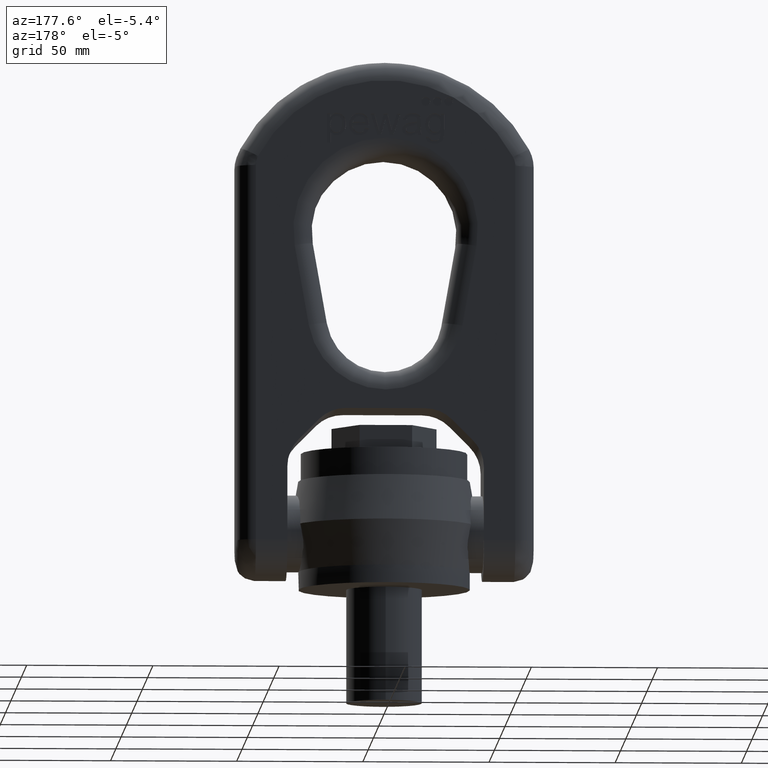
[diagram: clean part render]
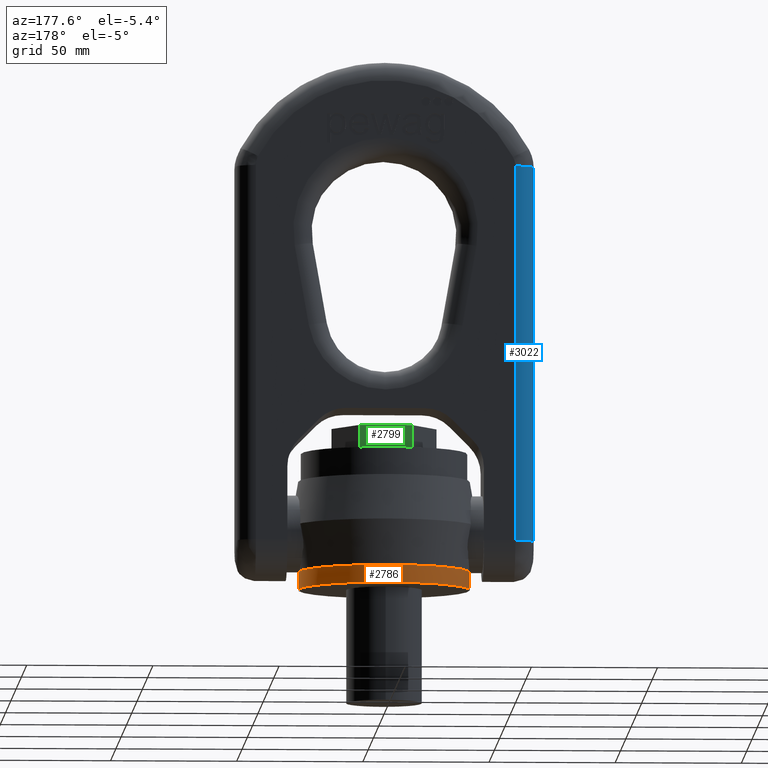
[diagram: same view with three faces highlighted in distinct colors, each labeled with its STEP entity id]
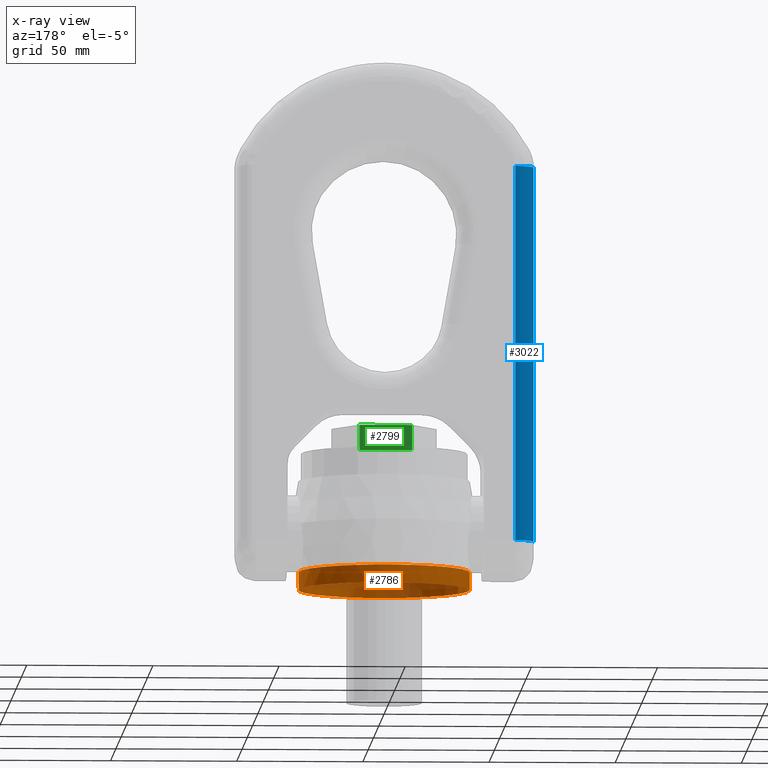
[diagram: x-ray of the same camera — body ghosted, the three highlighted faces saturated]
A machine part, auxiliary view with three faces highlighted in distinct colors.
The next image is the same camera in x-ray (body ghosted, the three faces saturated) — at least one of them is partly hidden behind the body in this view.
Their STEP definitions:

[orange] entity #2786 — the highlighted cylindrical surface (bore or boss wall) has radius 34 mm, axis along (0, 0, -1).
#2786=ADVANCED_FACE('',(#3069,#3070),#3040,.T.);
#3040=CYLINDRICAL_SURFACE('',#5830,34.);
#3069=FACE_BOUND('',#3137,.T.);
#3070=FACE_BOUND('',#3138,.T.);
#3137=EDGE_LOOP('',(#3433));
#3138=EDGE_LOOP('',(#3434));
#3433=ORIENTED_EDGE('',*,*,#5117,.T.);
#3434=ORIENTED_EDGE('',*,*,#5118,.F.);
#4697=VERTEX_POINT('',#6938);
#4698=VERTEX_POINT('',#6940);
#5117=EDGE_CURVE('',#4697,#4697,#5749,.T.);
#5118=EDGE_CURVE('',#4698,#4698,#5750,.T.);
#5749=CIRCLE('',#5828,34.);
#5750=CIRCLE('',#5829,34.);
#5828=AXIS2_PLACEMENT_3D('',#6937,#6066,#6067);
#5829=AXIS2_PLACEMENT_3D('',#6939,#6068,#6069);
#5830=AXIS2_PLACEMENT_3D('',#6941,#6070,#6071);
#6066=DIRECTION('',(0.,0.,-1.));
#6067=DIRECTION('',(-1.,0.,0.));
#6068=DIRECTION('',(0.,0.,-1.));
#6069=DIRECTION('',(-6.12323399573677E-17,1.,0.));
#6070=DIRECTION('',(0.,0.,-1.));
#6071=DIRECTION('',(-1.,0.,0.));
#6937=CARTESIAN_POINT('',(0.,0.,7.));
#6938=CARTESIAN_POINT('',(-34.,0.,7.));
#6939=CARTESIAN_POINT('',(0.,0.,0.));
#6940=CARTESIAN_POINT('',(-2.0818995585505E-15,34.,0.));
#6941=CARTESIAN_POINT('',(0.,0.,7.));

[blue] entity #3022 — the highlighted cylindrical surface (edge-blend (fillet) strip) has radius 7.6 mm, axis along (-0, 0, -1).
#1823=LINE('',#7423,#2131);
#1865=LINE('',#7745,#2173);
#2131=VECTOR('',#6282,1.);
#2173=VECTOR('',#6346,1.);
#2647=FACE_OUTER_BOUND('',#3415,.T.);
#3022=ADVANCED_FACE('',(#2647),#3062,.T.);
#3062=CYLINDRICAL_SURFACE('',#6035,7.6);
#3415=EDGE_LOOP('',(#4625,#4626,#4627,#4628));
#4625=ORIENTED_EDGE('',*,*,#5729,.T.);
#4626=ORIENTED_EDGE('',*,*,#5361,.F.);
#4627=ORIENTED_EDGE('',*,*,#5732,.F.);
#4628=ORIENTED_EDGE('',*,*,#5278,.F.);
#4739=VERTEX_POINT('',#7058);
#4840=VERTEX_POINT('',#7424);
#4920=VERTEX_POINT('',#7744);
#4921=VERTEX_POINT('',#7746);
#5278=EDGE_CURVE('',#4739,#4840,#1823,.T.);
#5361=EDGE_CURVE('',#4920,#4921,#1865,.T.);
#5729=EDGE_CURVE('',#4739,#4921,#5807,.T.);
#5732=EDGE_CURVE('',#4840,#4920,#5810,.T.);
#5807=CIRCLE('',#6030,7.6);
#5810=CIRCLE('',#6034,7.6);
#6030=AXIS2_PLACEMENT_3D('',#9715,#6868,#6869);
#6034=AXIS2_PLACEMENT_3D('',#9735,#6876,#6877);
#6035=AXIS2_PLACEMENT_3D('',#9736,#6878,#6879);
#6282=DIRECTION('',(8.28524645242654E-17,-1.94115928071668E-31,1.));
#6346=DIRECTION('',(-8.28524645242654E-17,1.94115928071668E-31,-1.));
#6868=DIRECTION('',(0.,0.,1.));
#6869=DIRECTION('',(1.,0.,0.));
#6876=DIRECTION('',(0.,0.,1.));
#6877=DIRECTION('',(1.,0.,0.));
#6878=DIRECTION('',(-8.28524645242654E-17,1.94115928071668E-31,-1.));
#6879=DIRECTION('',(-1.,0.,0.));
#7058=CARTESIAN_POINT('',(-51.4,15.2000000000001,18.7000000000001));
#7423=CARTESIAN_POINT('',(-51.4,15.2000000000001,167.477855090295));
#7424=CARTESIAN_POINT('',(-51.4,15.2000000000001,167.477855090295));
#7744=CARTESIAN_POINT('',(-59.,7.60000000000012,167.477855090295));
#7745=CARTESIAN_POINT('',(-59.,7.60000000000012,18.7000000000001));
#7746=CARTESIAN_POINT('',(-59.,7.59999999999999,18.7000000000001));
#9715=CARTESIAN_POINT('',(-51.4,7.59999999999999,18.7000000000001));
#9735=CARTESIAN_POINT('',(-51.4,7.60000000000012,167.477855090295));
#9736=CARTESIAN_POINT('',(-51.4,7.60000000000012,144.197368421053));

[green] entity #2799 — the highlighted planar face has unit normal (0, -1, 0).
#1731=LINE('',#6966,#2039);
#1742=LINE('',#6988,#2050);
#1744=LINE('',#6992,#2052);
#1745=LINE('',#6994,#2053);
#2039=VECTOR('',#6100,1.);
#2050=VECTOR('',#6119,1.);
#2052=VECTOR('',#6123,1.);
#2053=VECTOR('',#6124,1.);
#2442=FACE_OUTER_BOUND('',#3158,.T.);
#2673=PLANE('',#5849);
#2799=ADVANCED_FACE('',(#2442),#2673,.F.);
#3158=EDGE_LOOP('',(#3471,#3472,#3473,#3474));
#3471=ORIENTED_EDGE('',*,*,#5127,.T.);
#3472=ORIENTED_EDGE('',*,*,#5140,.F.);
#3473=ORIENTED_EDGE('',*,*,#5141,.F.);
#3474=ORIENTED_EDGE('',*,*,#5138,.T.);
#4707=VERTEX_POINT('',#6965);
#4708=VERTEX_POINT('',#6967);
#4715=VERTEX_POINT('',#6989);
#4716=VERTEX_POINT('',#6993);
#5127=EDGE_CURVE('',#4708,#4707,#1731,.T.);
#5138=EDGE_CURVE('',#4715,#4708,#1742,.T.);
#5140=EDGE_CURVE('',#4716,#4707,#1744,.T.);
#5141=EDGE_CURVE('',#4715,#4716,#1745,.T.);
#5849=AXIS2_PLACEMENT_3D('',#6995,#6125,#6126);
#6100=DIRECTION('',(-1.,0.,0.));
#6119=DIRECTION('',(0.,0.,-1.));
#6123=DIRECTION('',(0.,0.,-1.));
#6124=DIRECTION('',(-1.,0.,0.));
#6125=DIRECTION('',(0.,-1.,0.));
#6126=DIRECTION('',(0.,0.,-1.));
#6965=CARTESIAN_POINT('',(-10.3923048454133,18.,54.));
#6966=CARTESIAN_POINT('',(10.3923048454133,18.,54.));
#6967=CARTESIAN_POINT('',(10.3923048454133,18.,54.));
#6988=CARTESIAN_POINT('',(10.3923048454133,18.,64.));
#6989=CARTESIAN_POINT('',(10.3923048454133,18.,64.));
#6992=CARTESIAN_POINT('',(-10.3923048454133,18.,64.));
#6993=CARTESIAN_POINT('',(-10.3923048454133,18.,64.));
#6994=CARTESIAN_POINT('',(10.3923048454133,18.,64.));
#6995=CARTESIAN_POINT('',(10.3923048454133,18.,64.));